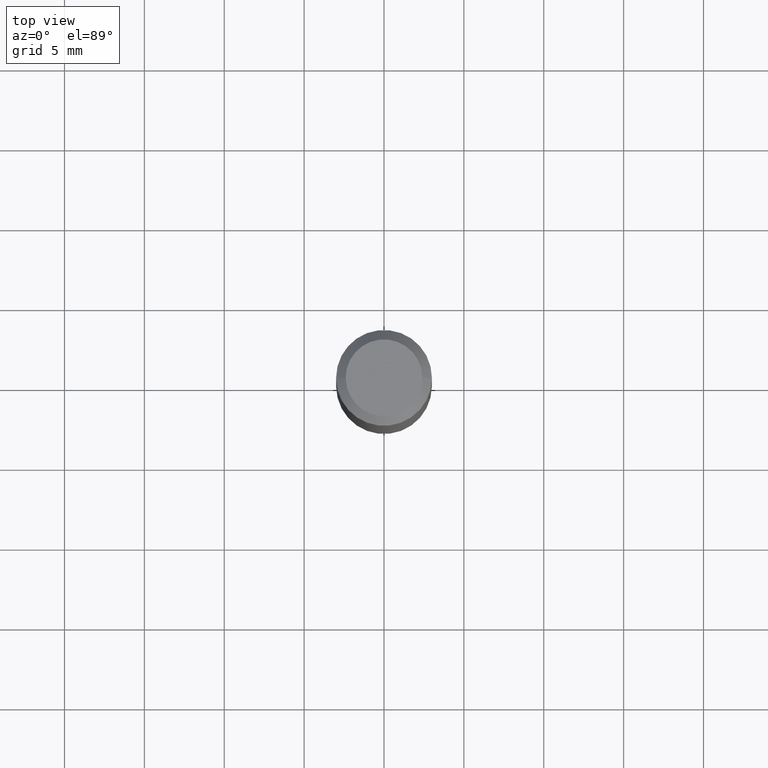
[diagram: clean part render]
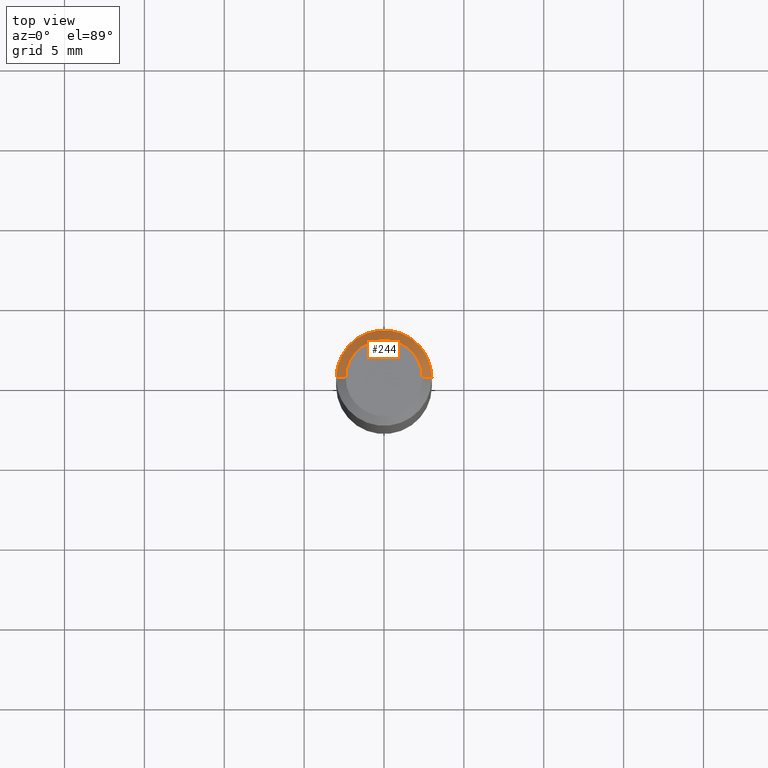
[diagram: same view with one face highlighted and labeled with its STEP entity id]
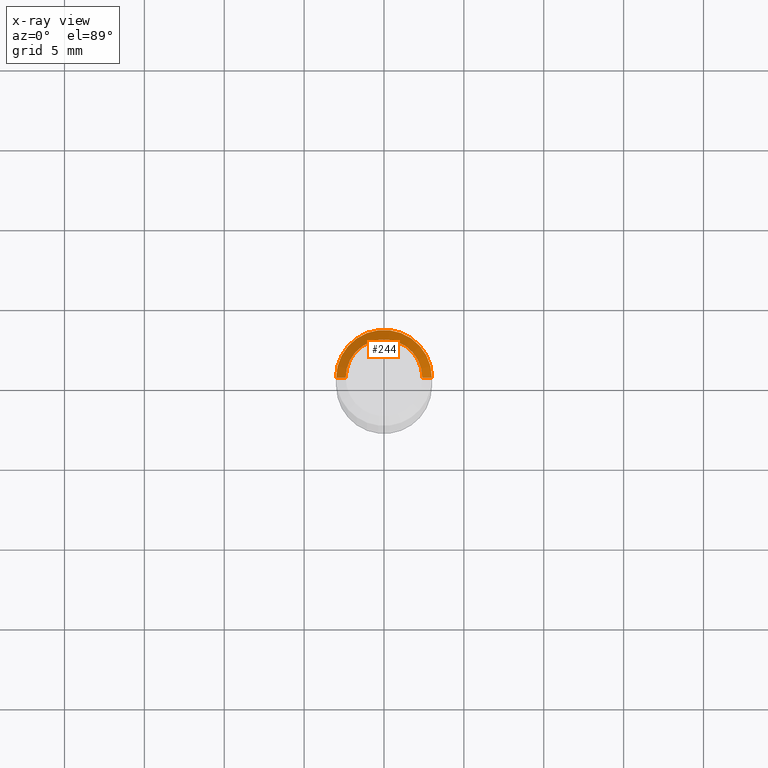
[diagram: x-ray of the same camera — body ghosted, the highlighted face saturated]
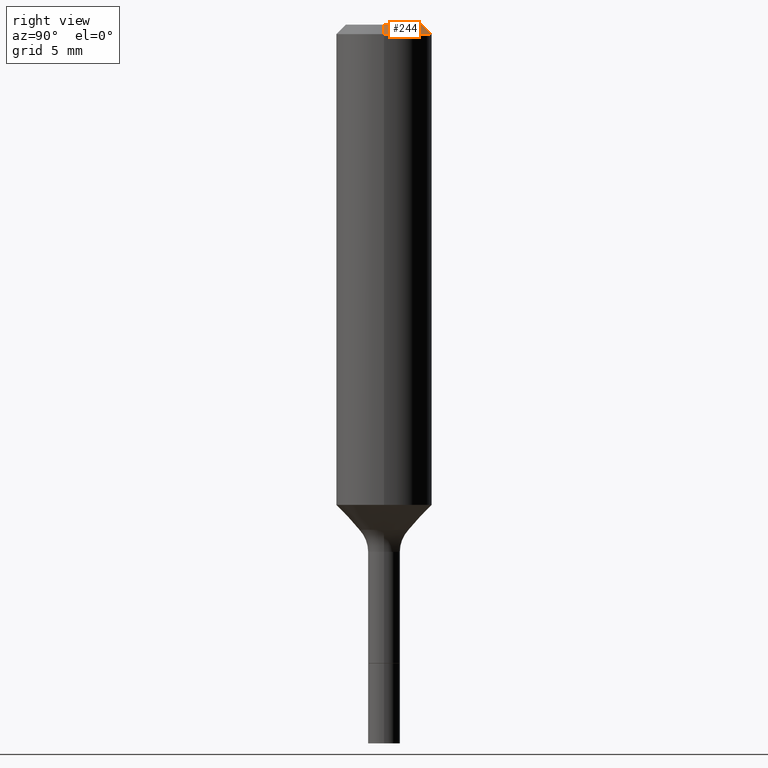
[diagram: same view with one face highlighted and labeled with its STEP entity id]
A machine part, top view. The second image highlights one B-rep face of the part: STEP entity #244.
The next image is the same camera in x-ray: the body ghosted, the highlighted face saturated — about 0% of this face is hidden behind the body in this view.
A second angle (right view) of the same face is appended — the face is thin or edge-on in the first view.
In plain terms, the highlighted conical surface has half-angle 45 deg.
Its self-contained STEP definition (entity closure, byte-faithful):
#8 = VERTEX_POINT ( 'NONE', #454 ) ;
#27 = EDGE_CURVE ( 'NONE', #254, #36, #355, .T. ) ;
#33 = VECTOR ( 'NONE', #309, 39.37007874015748143 ) ;
#34 = LINE ( 'NONE', #250, #432 ) ;
#36 = VERTEX_POINT ( 'NONE', #187 ) ;
#52 = DIRECTION ( 'NONE',  ( 1.000000000000000000, -6.982962677686267499E-15, 4.875432709231658792E-29 ) ) ;
#55 = CIRCLE ( 'NONE', #195, 0.09447999999999998066 ) ;
#58 = AXIS2_PLACEMENT_3D ( 'NONE', #302, #143, #390 ) ;
#64 = CARTESIAN_POINT ( 'NONE',  ( 7.545787641473140628E-46, -1.077338491108201769E-31, -3.085620075131671975E-17 ) ) ;
#68 = AXIS2_PLACEMENT_3D ( 'NONE', #446, #478, #492 ) ;
#79 = DIRECTION ( 'NONE',  ( 0.7071067811865461294, -7.319954787623251312E-15, -0.7071067811865489050 ) ) ;
#135 = ORIENTED_EDGE ( 'NONE', *, *, #417, .F. ) ;
#143 = DIRECTION ( 'NONE',  ( -2.445468806185136597E-29, 3.491481338843145583E-15, 1.000000000000000000 ) ) ;
#147 = CONICAL_SURFACE ( 'NONE', #68, 0.1180999999999999966, 0.7853981633974463916 ) ;
#169 = EDGE_CURVE ( 'NONE', #283, #8, #34, .T. ) ;
#187 = CARTESIAN_POINT ( 'NONE',  ( -0.1180999999999999966, -1.268583212245612878E-15, -0.02362000000000013741 ) ) ;
#195 = AXIS2_PLACEMENT_3D ( 'NONE', #64, #227, #52 ) ;
#197 = FACE_OUTER_BOUND ( 'NONE', #292, .T. ) ;
#227 = DIRECTION ( 'NONE',  ( -2.445468806185136597E-29, 3.491481338843145583E-15, 1.000000000000000000 ) ) ;
#244 = ADVANCED_FACE ( 'NONE', ( #197 ), #147, .T. ) ;
#250 = CARTESIAN_POINT ( 'NONE',  ( 0.1180999999999999966, -8.926936027602933910E-16, -0.02362000000000013741 ) ) ;
#254 = VERTEX_POINT ( 'NONE', #342 ) ;
#269 = CARTESIAN_POINT ( 'NONE',  ( 0.09447999999999998066, -7.704367267948738690E-16, -3.085620075131172158E-17 ) ) ;
#270 = CIRCLE ( 'NONE', #58, 0.1180999999999999966 ) ;
#283 = VERTEX_POINT ( 'NONE', #269 ) ;
#292 = EDGE_LOOP ( 'NONE', ( #135, #334, #409, #369 ) ) ;
#302 = CARTESIAN_POINT ( 'NONE',  ( 5.776197320209326656E-31, -8.246878922347558061E-17, -0.02362000000000013741 ) ) ;
#309 = DIRECTION ( 'NONE',  ( -0.7071067811865461294, 2.468850131082242072E-15, -0.7071067811865489050 ) ) ;
#334 = ORIENTED_EDGE ( 'NONE', *, *, #169, .T. ) ;
#342 = CARTESIAN_POINT ( 'NONE',  ( -0.09447999999999998066, 7.009847083995354710E-16, -3.085620075132147757E-17 ) ) ;
#355 = LINE ( 'NONE', #469, #33 ) ;
#369 = ORIENTED_EDGE ( 'NONE', *, *, #27, .F. ) ;
#390 = DIRECTION ( 'NONE',  ( 1.000000000000000000, -6.982962677686266711E-15, 0.000000000000000000 ) ) ;
#409 = ORIENTED_EDGE ( 'NONE', *, *, #433, .T. ) ;
#417 = EDGE_CURVE ( 'NONE', #283, #254, #55, .T. ) ;
#432 = VECTOR ( 'NONE', #79, 39.37007874015748143 ) ;
#433 = EDGE_CURVE ( 'NONE', #8, #36, #270, .T. ) ;
#446 = CARTESIAN_POINT ( 'NONE',  ( 5.776197320209326656E-31, -8.246878922347558061E-17, -0.02362000000000013741 ) ) ;
#454 = CARTESIAN_POINT ( 'NONE',  ( 0.1180999999999999966, -9.071566814582237199E-16, -0.02362000000000013741 ) ) ;
#469 = CARTESIAN_POINT ( 'NONE',  ( -0.1180999999999999966, 7.422191030112725094E-16, -0.02362000000000013741 ) ) ;
#478 = DIRECTION ( 'NONE',  ( 2.445468806185136597E-29, -3.491481338843145583E-15, -1.000000000000000000 ) ) ;
#492 = DIRECTION ( 'NONE',  ( -1.000000000000000000, 6.982962677686266711E-15, 0.000000000000000000 ) ) ;